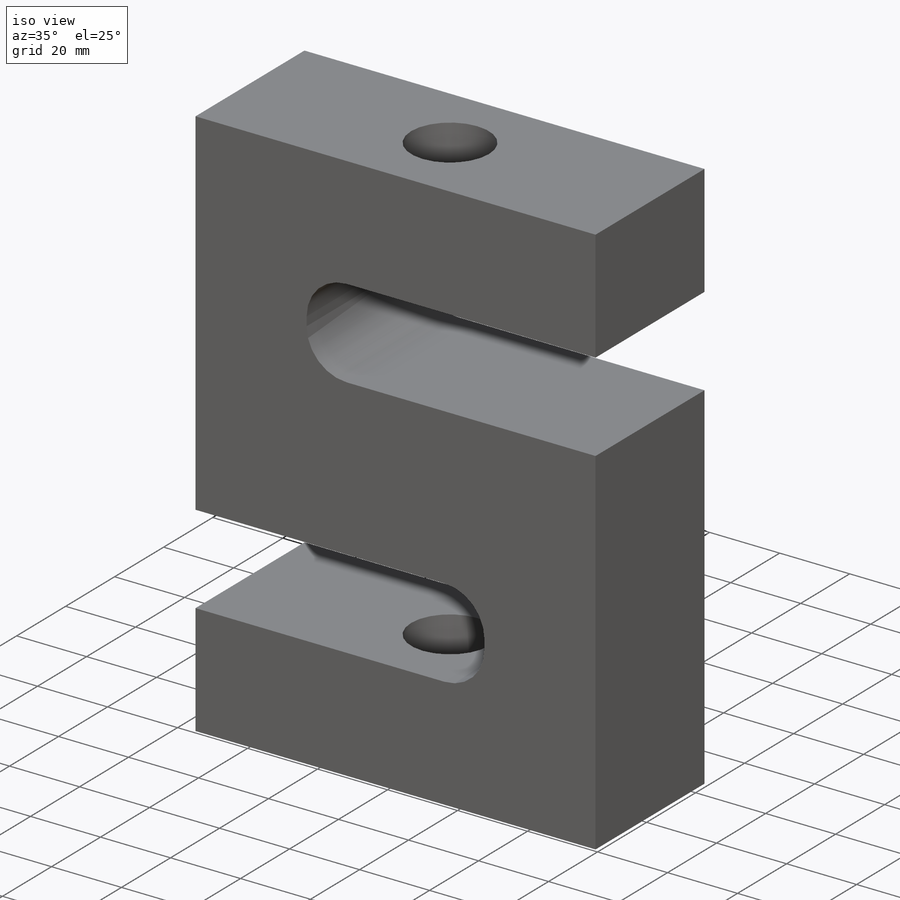
[diagram: iso view]
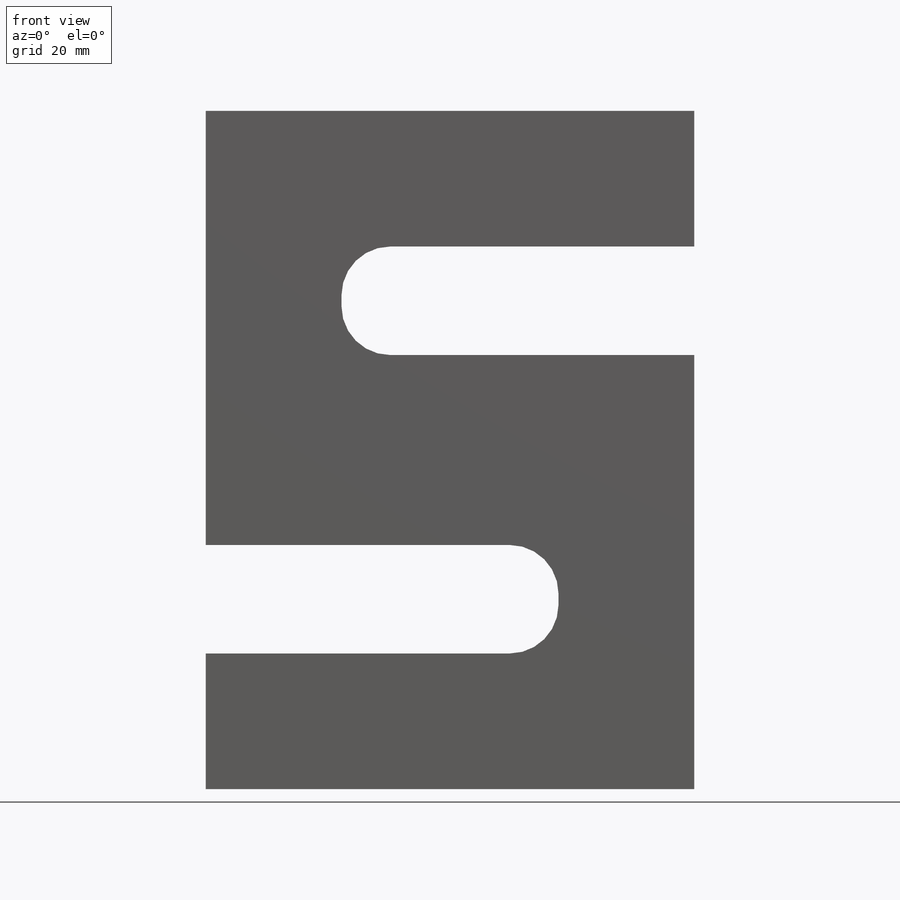
[diagram: front view]
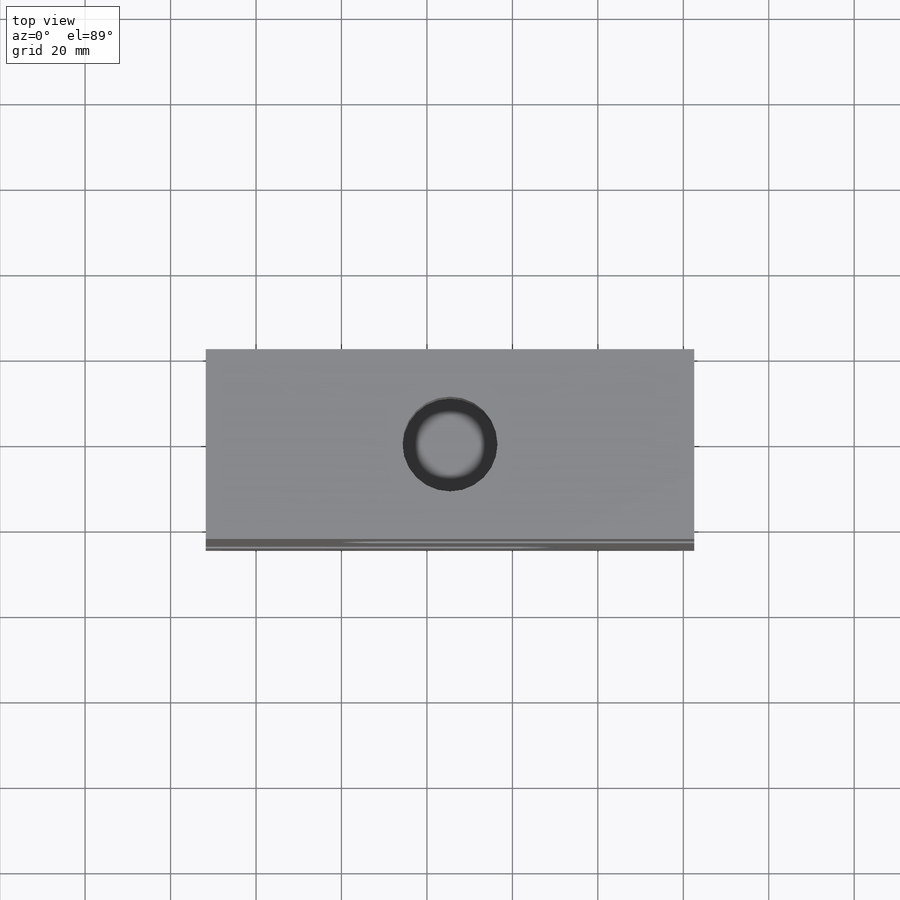
[diagram: top view]
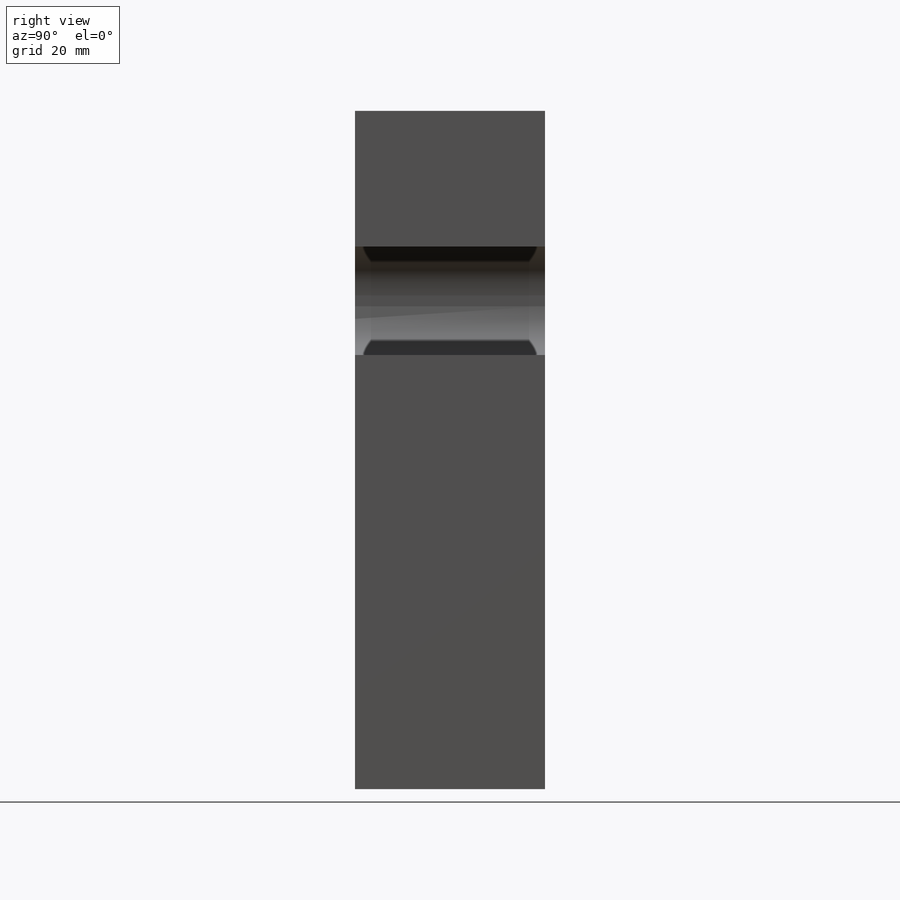
[diagram: right view]
SOLIDWORKS PART (.sldprt)
format: sldprt  version: not decoded by parser v0  size: 232,448 bytes
history: native  units: mm
features: sketch x7, hole x2, thread x2, material x1, extrude x1, fillet x1 (+16 scaffold rows collapsed)
feature tree (30):
  scaffold x16  (default folders/planes/origin — collapsed)
  material  "Alloy Steel"
  sketch  "Sketch1"  dims[c1.D1=38.1mm c1.D2=31.75mm c1.D3=25.4mm c1.D4=31.75mm c2.D1=101.6mm c2.D5=114.3mm]
  extrude  "Boss-Extrude1"  Depth=44.45mm
  fillet  "Fillet1"  Radius=11.43mm
  sketch  "Sketch2"
  sketch  "Sketch3"
  hole  "1-8 Tapped Hole1"  [1 undecoded]
  sketch  "Sketch5"
  thread  "Hole Thread1"  Diameter=25.4mm  [1 undecoded]
  sketch  "Sketch4"  dims[hole-wizard template sketch: 59 standard entries collapsed; hole parameters kept: c18.Thru Tap Drill Dia.=22.225mm c18.Thru Tap Drill Depth=31.75mm]
  hole  "1-8 Tapped Hole2"  [1 undecoded]
  sketch  "Sketch7"
  thread  "Hole Thread2"  Diameter=25.4mm  [1 undecoded]
  sketch  "Sketch6"  dims[hole-wizard template sketch: 59 standard entries collapsed; hole parameters kept: c18.Thru Tap Drill Dia.=22.225mm c18.Thru Tap Drill Depth=31.75mm]
decode coverage: 7 of 13 modeling features carry decoded parameters
note: ~ marks probable driven/reference dimensions
note: 4 parameter values undecoded
note: suppression state not decoded; provenance and decode notes live in map.json
